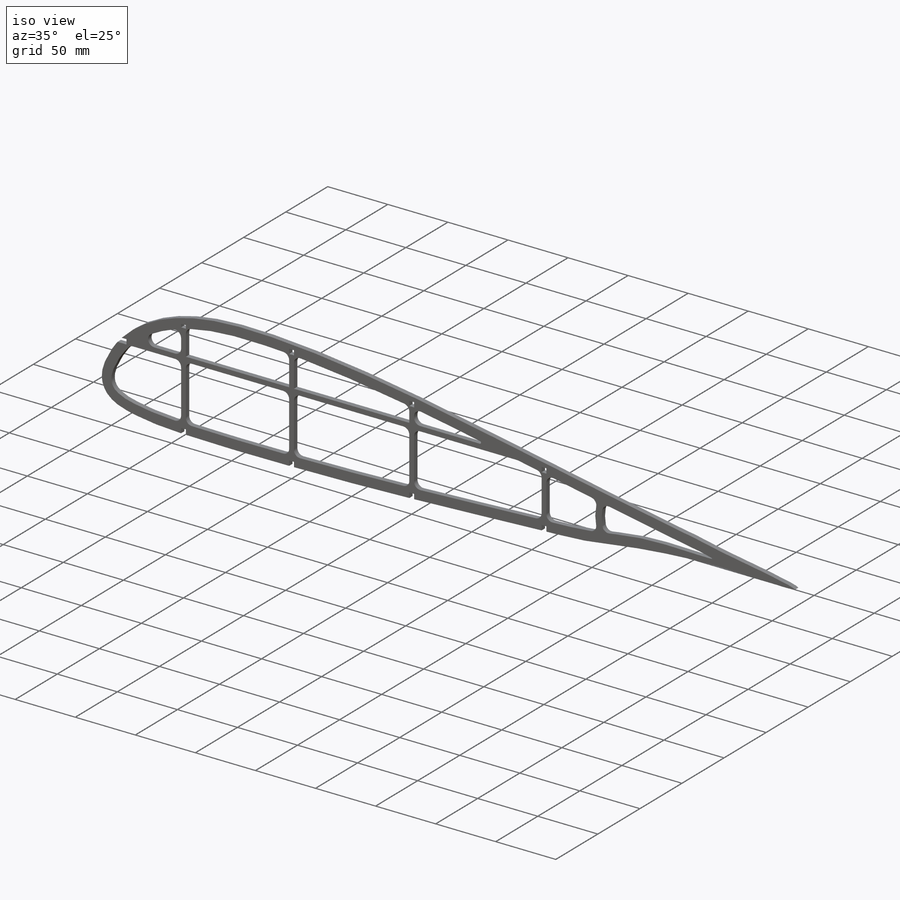
[diagram: iso view]
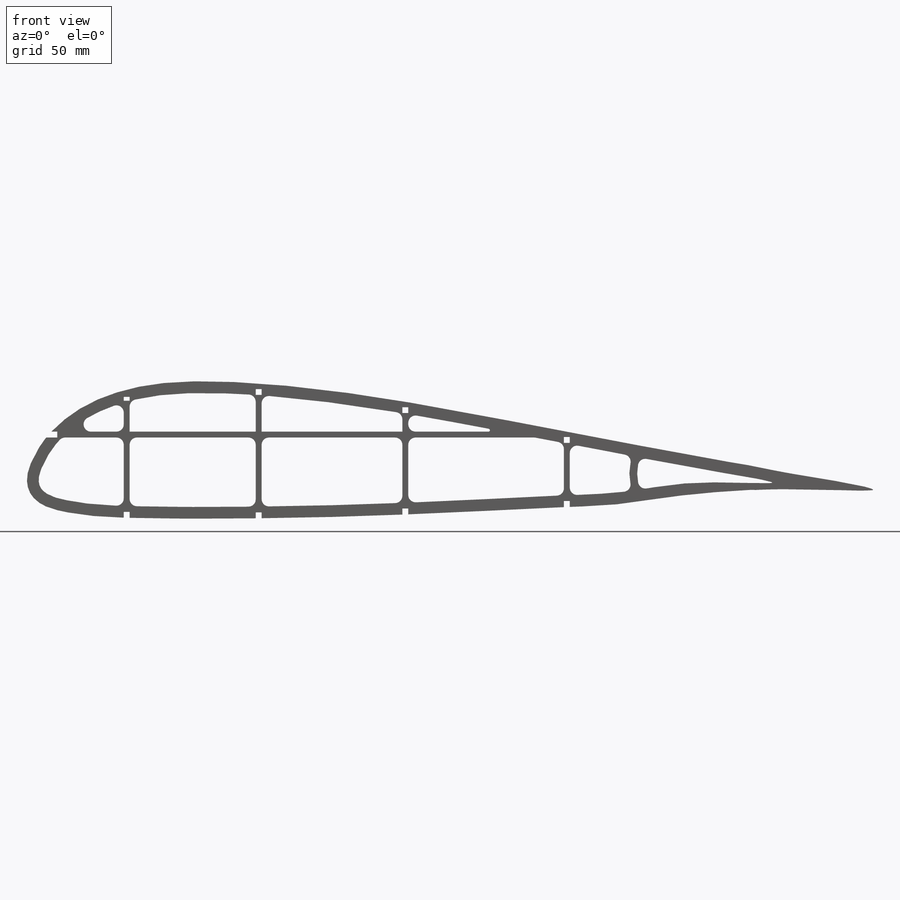
[diagram: front view]
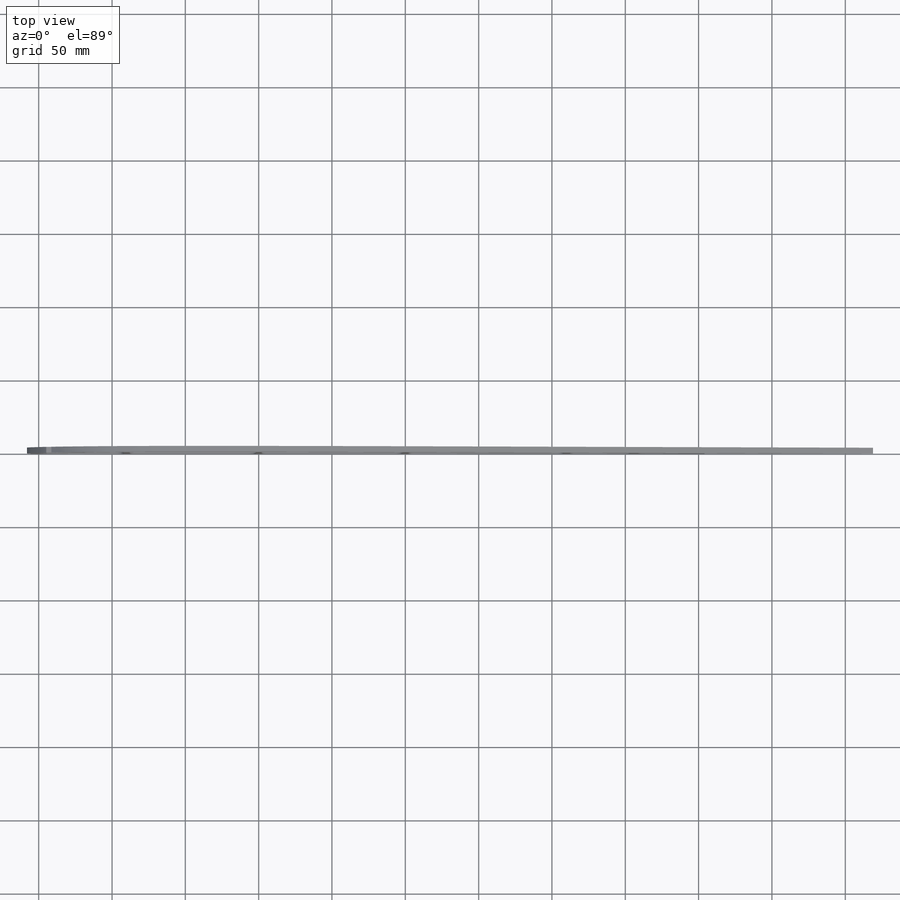
[diagram: top view]
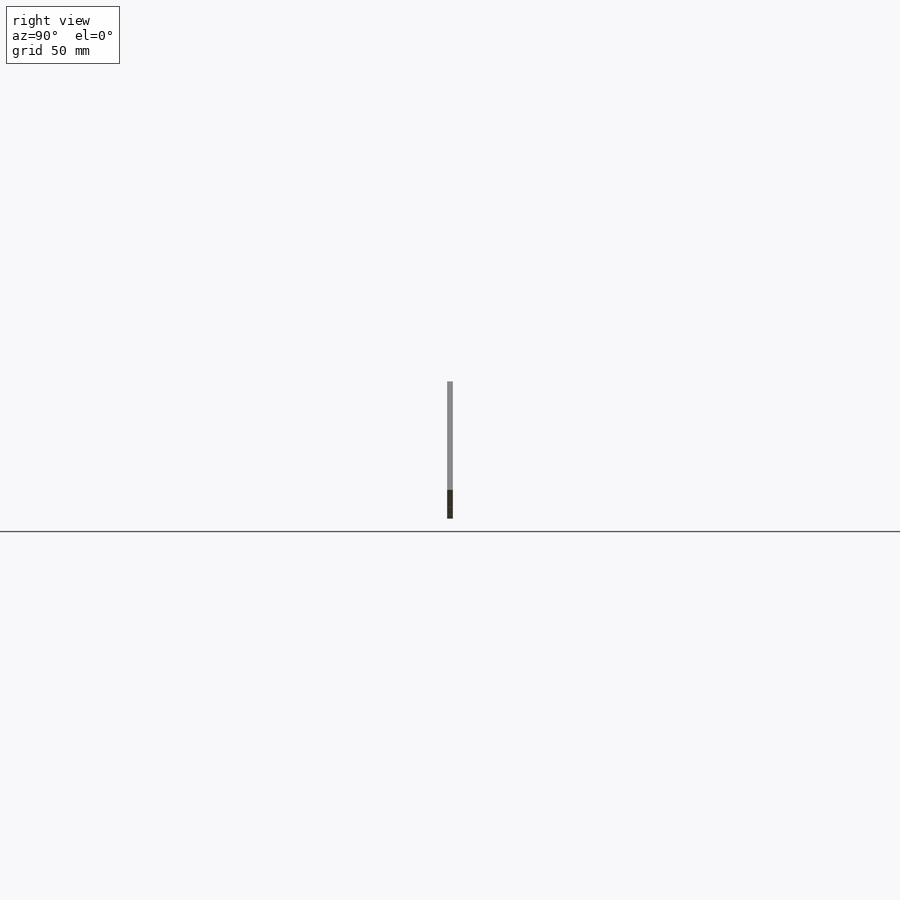
[diagram: right view]
SOLIDWORKS PART (.sldprt)
format: sldprt  version: not decoded by parser v0  size: 799,744 bytes
history: native  units: mm
features: fillet x24, sketch x7, extrude x3, cut_extrude x2, material x1 (+13 scaffold rows collapsed)
feature tree (50):
  scaffold x13  (default folders/planes/origin — collapsed)
  material  "Cedar"
  sketch  "Sketch11"  dims[c1.D3=32.0mm c1.D11=5.0mm c1.D12=5.0mm c1.D13=28.8mm c1.D19=~1038.448062mm c1.D20=~1038.448062mm c2.D13=5.0mm c2.D35=5.0mm c2.D38=30.0mm c2.D39=30.0mm c2.D1=4.0mm c2.D2=2.0mm c2.D4=2.0mm c2.D5=4.0mm c2.D6=2.0mm c2.D7=4.0mm c2.D8=2.0mm c2.D9=4.0mm c2.D10=2.0mm c2.D14=60.0mm c2.D15=150.0mm c2.D16=250.0mm c2.D17=140.0mm c2.D18=2.0mm c2.D19=79.616mm c3.D9=2.0mm c3.D19=2.0mm c3.D20=4.0mm c3.D21=4.0mm c3.D22=4.0mm c3.D23=4.0mm c3.D24=4.0mm c3.D25=0.1mm c3.D26=0.1mm c3.D27=4.0mm c3.D28=0.1mm c3.D29=4.0mm c3.D30=0.1mm c3.D31=4.0mm c3.D32=~500.144153mm c3.D33=2.0mm c3.D34=~1.650019mm c3.D35=~19.004713mm c4.D34=2.0mm c4.D35=~4.089875mm c4.D36=100.0mm c4.D37=10.0mm c5.D36=90.0mm c5.D37=5.0mm c5.D1=5.0mm c5.D18=8.0mm]
  extrude  "Boss-Extrude41"  Depth=4mm
  sketch  "Sketch13"
  cut_extrude  "Cut-Extrude3"  [1 undecoded]
  sketch  "Sketch18"  dims[D1=0.0mm]
  extrude  "Boss-Extrude52"  [1 undecoded]
  sketch  "Sketch19"
  cut_extrude  "Cut-Extrude4"  [1 undecoded]
  sketch  "Sketch21"
  fillet  "Fillet15"  Radius=5mm
  fillet  "Fillet16"  Radius=5mm
  fillet  "Fillet17"  Radius=5mm
  fillet  "Fillet18"  Radius=5mm
  fillet  "Fillet19"  Radius=5mm
  fillet  "Fillet20"  Radius=5mm
  fillet  "Fillet21"  Radius=5mm
  fillet  "Fillet22"  Radius=5mm
  fillet  "Fillet23"  Radius=5mm
  fillet  "Fillet24"  Radius=5mm
  fillet  "Fillet25"  Radius=5mm
  fillet  "Fillet26"  Radius=5mm
  fillet  "Fillet27"  Radius=5mm
  fillet  "Fillet28"  Radius=5mm
  fillet  "Fillet29"  Radius=1mm
  fillet  "Fillet30"  Radius=5mm
  fillet  "Fillet31"  Radius=5mm
  fillet  "Fillet32"  Radius=5mm
  fillet  "Fillet33"  Radius=5mm
  fillet  "Fillet34"  Radius=5mm ModelUUID=0mm UUID=0mm
  extrude  "Boss-Extrude54"  [1 undecoded]
  sketch  "Sketch11<21>"
  sketch  "Sketch23"
  fillet  "Fillet35"  Radius=5mm
  fillet  "Fillet36"  Radius=5mm
  fillet  "Fillet37"  Radius=5mm
  fillet  "Fillet38"  Radius=5mm
decode coverage: 27 of 36 modeling features carry decoded parameters
note: ~ marks probable driven/reference dimensions
note: 4 parameter values undecoded
summary: no parameter record found for 4 features
note: suppression state not decoded; provenance and decode notes live in map.json
